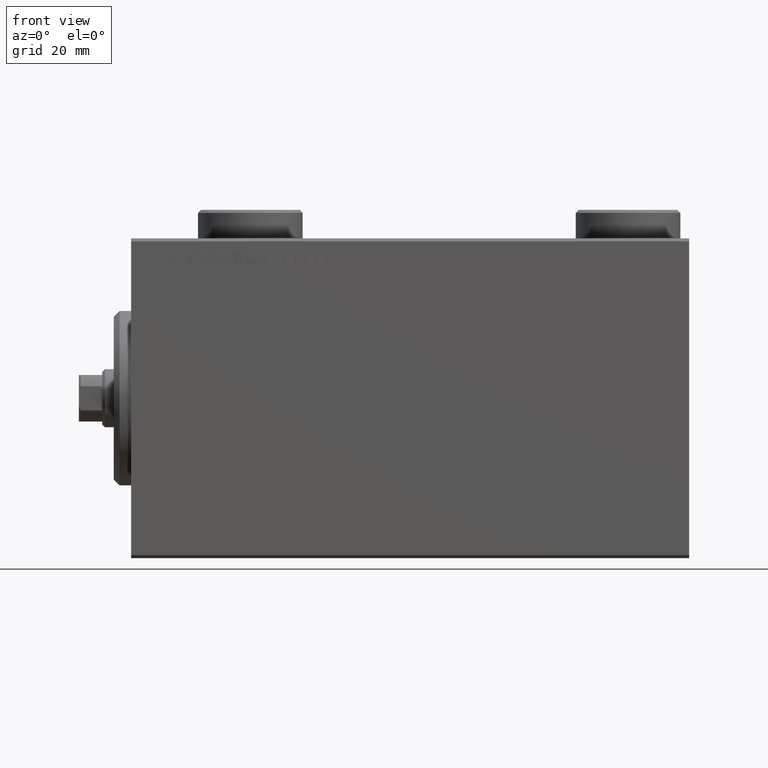
[diagram: clean part render]
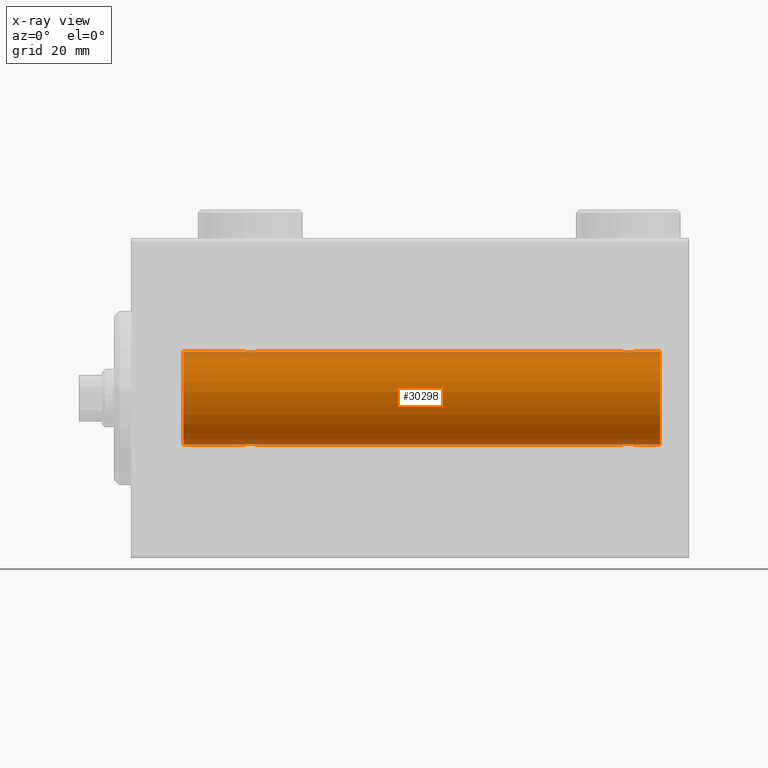
[diagram: x-ray — body ghosted, one internal face saturated and labeled with its STEP entity id]
A machine part, front view, then the same camera in x-ray: the body is ghosted and one INTERNAL B-rep face — a face not visible from any outside direction — is saturated and labeled: STEP entity #30298.
In plain terms, the highlighted cylindrical surface (partial cylindrical patch) has radius 8 mm, axis along (-1, -0, -0).
Its self-contained STEP definition (entity closure, byte-faithful):
#123 = CARTESIAN_POINT ( 'NONE',  ( 19.73732994206309499, -0.9937204387496718638, 7.938174152191987076 ) ) ;
#350 = VERTEX_POINT ( 'NONE', #15003 ) ;
#525 = CARTESIAN_POINT ( 'NONE',  ( 85.17169333885887283, -1.217212176555603431, 7.907113222863028312 ) ) ;
#1001 = DIRECTION ( 'NONE',  ( 0.000000000000000000, 0.000000000000000000, 1.000000000000000000 ) ) ;
#1907 = CARTESIAN_POINT ( 'NONE',  ( 84.28333392022814508, -0.3297258132310611489, -7.994620111903500970 ) ) ;
#1927 = B_SPLINE_CURVE_WITH_KNOTS ( 'NONE', 3,
 ( #6585, #10249, #31679, #41335, #17603, #42014, #123, #35350, #34451, #34677, #28223, #35123, #42241, #10027, #17832, #10698, #21293, #31004, #27553, #24306 ),
 .UNSPECIFIED., .F., .F.,
 ( 4, 2, 2, 2, 2, 2, 2, 2, 2, 4 ),
 ( 0.003914068143704974717, 0.004403205918210087270, 0.004892343692715199824, 0.005136912579967756534, 0.005381481467220313245, 0.005870619241725426665, 0.006359757016230540086, 0.006848894790735652639, 0.007338032565240766060, 0.007827170339745878613 ),
 .UNSPECIFIED. ) ;
#2158 = CARTESIAN_POINT ( 'NONE',  ( 84.25000000000001421, -4.052102368803510290E-23, 7.999999999999998224 ) ) ;
#2283 = CARTESIAN_POINT ( 'NONE',  ( 21.75000000000000355, 9.797173987965608855E-16, -7.999999999999998224 ) ) ;
#2467 = DIRECTION ( 'NONE',  ( -1.000000000000000000, -0.000000000000000000, -0.000000000000000000 ) ) ;
#2487 = DIRECTION ( 'NONE',  ( -1.000000000000000000, 0.000000000000000000, 0.000000000000000000 ) ) ;
#2587 = CARTESIAN_POINT ( 'NONE',  ( 86.12714162834986098, -1.084361243153331378, -7.926301147147065684 ) ) ;
#2685 = DIRECTION ( 'NONE',  ( -1.000000000000000000, -0.000000000000000000, -0.000000000000000000 ) ) ;
#2932 = LINE ( 'NONE', #24118, #35941 ) ;
#2966 = B_SPLINE_CURVE_WITH_KNOTS ( 'NONE', 3,
 ( #30703, #22867, #44954, #37136, #23092, #33691, #30240, #2587, #33916, #44488, #16384, #37830, #40799, #9270, #5590, #44259, #9730, #1907, #12937, #23785 ),
 .UNSPECIFIED., .F., .F.,
 ( 4, 2, 2, 2, 2, 2, 2, 2, 2, 4 ),
 ( 0.003914068143704947829, 0.004403205918210036963, 0.004892343692715126965, 0.005136912579967671533, 0.005381481467220216100, 0.005870619241725345133, 0.006359757016230472432, 0.006848894790735599730, 0.007338032565240728763, 0.007827170339745857797 ),
 .UNSPECIFIED. ) ;
#3046 = CARTESIAN_POINT ( 'NONE',  ( 21.26267005793691212, -0.9937204387496720859, -7.938174152191990629 ) ) ;
#3514 = ORIENTED_EDGE ( 'NONE', *, *, #30362, .T. ) ;
#3529 = CARTESIAN_POINT ( 'NONE',  ( 86.59165033467904493, -0.6303134207467974148, 7.976551562999476985 ) ) ;
#4093 = CIRCLE ( 'NONE', #32771, 7.999999999999998224 ) ;
#4692 = CYLINDRICAL_SURFACE ( 'NONE', #39516, 7.999999999999998224 ) ;
#5590 = CARTESIAN_POINT ( 'NONE',  ( 84.73184514123553868, -0.9994562523959246159, -7.938165420771276182 ) ) ;
#6416 = DIRECTION ( 'NONE',  ( 0.000000000000000000, 0.000000000000000000, 1.000000000000000000 ) ) ;
#6438 = VERTEX_POINT ( 'NONE', #40326 ) ;
#6504 = CARTESIAN_POINT ( 'NONE',  ( 21.75000000000000355, 9.797173987965608855E-16, -7.999999999999998224 ) ) ;
#6534 = VECTOR ( 'NONE', #2685, 1000.000000000000000 ) ;
#6585 = CARTESIAN_POINT ( 'NONE',  ( 19.25000000000000000, -4.052102368803510290E-23, 7.999999999999998224 ) ) ;
#6732 = CARTESIAN_POINT ( 'NONE',  ( 21.75000000000000355, -0.1632520343443068511, -7.999999999999998224 ) ) ;
#6956 = CARTESIAN_POINT ( 'NONE',  ( 19.40834966532100481, -0.6303134207467991912, -7.976551562999473433 ) ) ;
#7188 = DIRECTION ( 'NONE',  ( -1.000000000000000000, -0.000000000000000000, -0.000000000000000000 ) ) ;
#7677 = ORIENTED_EDGE ( 'NONE', *, *, #34051, .F. ) ;
#7921 = FACE_OUTER_BOUND ( 'NONE', #27683, .T. ) ;
#8129 = CARTESIAN_POINT ( 'NONE',  ( 21.75000000000000355, 2.367508772235555199E-16, 7.999999999999998224 ) ) ;
#8147 = DIRECTION ( 'NONE',  ( -1.000000000000000000, -0.000000000000000000, -0.000000000000000000 ) ) ;
#8257 = CARTESIAN_POINT ( 'NONE',  ( 84.25000000000001421, -1.276489185009471567E-14, -7.999999999999998224 ) ) ;
#8598 = DIRECTION ( 'NONE',  ( -1.000000000000000000, -0.000000000000000000, -0.000000000000000000 ) ) ;
#9270 = CARTESIAN_POINT ( 'NONE',  ( 84.87056207267774255, -1.092287957405127408, -7.925333492638528377 ) ) ;
#9296 = CARTESIAN_POINT ( 'NONE',  ( 84.50041313324086900, -0.7680324342712208097, 7.963892330120033947 ) ) ;
#9680 = CARTESIAN_POINT ( 'NONE',  ( 91.00000000000000000, 9.797174393178823685E-16, -7.999999999999998224 ) ) ;
#9730 = CARTESIAN_POINT ( 'NONE',  ( 84.40834966532098349, -0.6303134207468096273, -7.976551562999471656 ) ) ;
#10027 = CARTESIAN_POINT ( 'NONE',  ( 21.12943792732229298, -1.092287957405117194, 7.925333492638530153 ) ) ;
#10205 = CARTESIAN_POINT ( 'NONE',  ( 86.49841755665750043, -0.7695044314719109435, 7.963745725343518878 ) ) ;
#10249 = CARTESIAN_POINT ( 'NONE',  ( 19.25000000000000355, -0.1632520343443079336, 8.000000000000000000 ) ) ;
#10303 = CARTESIAN_POINT ( 'NONE',  ( 9.000000000000007105, 0.000000000000000000, 0.000000000000000000 ) ) ;
#10356 = LINE ( 'NONE', #9680, #11144 ) ;
#10433 = CARTESIAN_POINT ( 'NONE',  ( 86.75000000000002842, 3.826567769925454797E-16, 7.999999999999998224 ) ) ;
#10698 = CARTESIAN_POINT ( 'NONE',  ( 21.49841755665748622, -0.7695044314719063916, 7.963745725343518878 ) ) ;
#10980 = DIRECTION ( 'NONE',  ( -1.000000000000000000, -0.000000000000000000, -0.000000000000000000 ) ) ;
#11104 = CARTESIAN_POINT ( 'NONE',  ( 86.75000000000000000, -0.1654128203352888959, 7.999999999999998224 ) ) ;
#11144 = VECTOR ( 'NONE', #17256, 1000.000000000000000 ) ;
#11261 = EDGE_CURVE ( 'NONE', #43875, #11678, #4093, .T. ) ;
#11678 = VERTEX_POINT ( 'NONE', #30193 ) ;
#12734 = CARTESIAN_POINT ( 'NONE',  ( 84.25000000000001421, -0.1632520343443091548, 7.999999999999998224 ) ) ;
#12937 = CARTESIAN_POINT ( 'NONE',  ( 84.25000000000002842, -0.1654128203353027737, -7.999999999999996447 ) ) ;
#13135 = EDGE_CURVE ( 'NONE', #6438, #350, #23954, .T. ) ;
#13154 = CARTESIAN_POINT ( 'NONE',  ( 91.00000000000000000, 0.000000000000000000, 7.999999999999998224 ) ) ;
#13200 = VERTEX_POINT ( 'NONE', #20802 ) ;
#13622 = CARTESIAN_POINT ( 'NONE',  ( 21.05544625654724200, -1.122809931695431640, -7.920878051565290789 ) ) ;
#14587 = VECTOR ( 'NONE', #8598, 1000.000000000000000 ) ;
#14616 = CIRCLE ( 'NONE', #41853, 7.999999999999998224 ) ;
#15003 = CARTESIAN_POINT ( 'NONE',  ( 86.75000000000002842, 3.826567769925454797E-16, 7.999999999999998224 ) ) ;
#15487 = CARTESIAN_POINT ( 'NONE',  ( 91.00000000000000000, 0.000000000000000000, 0.000000000000000000 ) ) ;
#15500 = B_SPLINE_CURVE_WITH_KNOTS ( 'NONE', 3,
 ( #6504, #6732, #20768, #20536, #34600, #34827, #3046, #45174, #13622, #27699, #31373, #41709, #27921, #41933, #24460, #38498, #6956, #35048, #32499, #39387 ),
 .UNSPECIFIED., .F., .F.,
 ( 4, 2, 2, 2, 2, 2, 2, 2, 2, 4 ),
 ( 0.003914068143704951298, 0.004403205918210062117, 0.004892343692715172936, 0.005136912579967725309, 0.005381481467220276815, 0.005870619241725390236, 0.006359757016230503657, 0.006848894790735617077, 0.007338032565240730498, 0.007827170339745843919 ),
 .UNSPECIFIED. ) ;
#15708 = EDGE_CURVE ( 'NONE', #25920, #15882, #15500, .T. ) ;
#15870 = CARTESIAN_POINT ( 'NONE',  ( 19.25000000000000711, -3.107364149877583097E-15, -7.999999999999998224 ) ) ;
#15882 = VERTEX_POINT ( 'NONE', #15870 ) ;
#16236 = ORIENTED_EDGE ( 'NONE', *, *, #13135, .T. ) ;
#16384 = CARTESIAN_POINT ( 'NONE',  ( 85.66599605016011765, -1.249894643705230068, -7.901756981264361102 ) ) ;
#17185 = VERTEX_POINT ( 'NONE', #37001 ) ;
#17256 = DIRECTION ( 'NONE',  ( -1.000000000000000000, -0.000000000000000000, -0.000000000000000000 ) ) ;
#17427 = LINE ( 'NONE', #42517, #25738 ) ;
#17603 = CARTESIAN_POINT ( 'NONE',  ( 19.50041313324087611, -0.7680324342712182561, 7.963892330120039276 ) ) ;
#17785 = CARTESIAN_POINT ( 'NONE',  ( 84.87285837165013902, -1.084361243153322940, 7.926301147147063908 ) ) ;
#17832 = CARTESIAN_POINT ( 'NONE',  ( 21.26815485876451461, -0.9994562523959116263, 7.938165420771274405 ) ) ;
#18958 = VERTEX_POINT ( 'NONE', #8257 ) ;
#19140 = ORIENTED_EDGE ( 'NONE', *, *, #33506, .F. ) ;
#19402 = DIRECTION ( 'NONE',  ( 0.000000000000000000, 0.000000000000000000, 1.000000000000000000 ) ) ;
#20279 = VERTEX_POINT ( 'NONE', #8129 ) ;
#20301 = ORIENTED_EDGE ( 'NONE', *, *, #34778, .F. ) ;
#20536 = CARTESIAN_POINT ( 'NONE',  ( 21.59250917855271013, -0.6288424646912625926, -7.976670562295708145 ) ) ;
#20768 = CARTESIAN_POINT ( 'NONE',  ( 21.71715712019488009, -0.3279446529214856687, -7.994696267489723951 ) ) ;
#20802 = CARTESIAN_POINT ( 'NONE',  ( 19.25000000000000000, -4.052102368803510290E-23, 7.999999999999998224 ) ) ;
#21023 = CARTESIAN_POINT ( 'NONE',  ( 86.26815485876451817, -0.9994562523959157341, 7.938165420771272629 ) ) ;
#21293 = CARTESIAN_POINT ( 'NONE',  ( 21.59165033467900940, -0.6303134207467964156, 7.976551562999473433 ) ) ;
#21475 = CARTESIAN_POINT ( 'NONE',  ( 85.66440551148905058, -1.250104850332079520, 7.901723728054485640 ) ) ;
#21749 = ORIENTED_EDGE ( 'NONE', *, *, #39522, .T. ) ;
#22867 = CARTESIAN_POINT ( 'NONE',  ( 86.75000000000001421, -0.1632520343443081834, -8.000000000000000000 ) ) ;
#23092 = CARTESIAN_POINT ( 'NONE',  ( 86.49958686675913100, -0.7680324342712141483, -7.963892330120035723 ) ) ;
#23394 = EDGE_CURVE ( 'NONE', #17185, #39199, #2932, .T. ) ;
#23785 = CARTESIAN_POINT ( 'NONE',  ( 84.25000000000001421, -1.276489185009471567E-14, -7.999999999999998224 ) ) ;
#23954 = B_SPLINE_CURVE_WITH_KNOTS ( 'NONE', 3,
 ( #2158, #12734, #40826, #26815, #9296, #42194, #28406, #17785, #31191, #525, #31638, #21475, #42421, #38302, #21023, #10205, #3529, #28181, #11104, #10433 ),
 .UNSPECIFIED., .F., .F.,
 ( 4, 2, 2, 2, 2, 2, 2, 2, 2, 4 ),
 ( 0.003914068143704953900, 0.004403205918210113291, 0.004892343692715272682, 0.005136912579967838066, 0.005381481467220403450, 0.005870619241725495187, 0.006359757016230586923, 0.006848894790735679527, 0.007338032565240772132, 0.007827170339745864736 ),
 .UNSPECIFIED. ) ;
#24118 = CARTESIAN_POINT ( 'NONE',  ( 91.00000000000000000, 9.797174393178823685E-16, -7.999999999999998224 ) ) ;
#24306 = CARTESIAN_POINT ( 'NONE',  ( 21.75000000000000355, 2.367508772235555199E-16, 7.999999999999998224 ) ) ;
#24460 = CARTESIAN_POINT ( 'NONE',  ( 19.73184514123549249, -0.9994562523959139577, -7.938165420771276182 ) ) ;
#24689 = LINE ( 'NONE', #38725, #40486 ) ;
#25738 = VECTOR ( 'NONE', #10980, 1000.000000000000000 ) ;
#25920 = VERTEX_POINT ( 'NONE', #2283 ) ;
#26815 = CARTESIAN_POINT ( 'NONE',  ( 84.40749082144731119, -0.6288424646912691429, 7.976670562295704592 ) ) ;
#27553 = CARTESIAN_POINT ( 'NONE',  ( 21.75000000000000711, -0.1654128203352893955, 8.000000000000001776 ) ) ;
#27683 = EDGE_LOOP ( 'NONE', ( #20301, #41180, #3514, #21749, #28641, #35245, #39474, #7677, #44024, #29522, #16236, #19140 ) ) ;
#27699 = CARTESIAN_POINT ( 'NONE',  ( 20.82830666114114848, -1.217212176555599434, -7.907113222863026536 ) ) ;
#27921 = CARTESIAN_POINT ( 'NONE',  ( 20.17298283628253230, -1.217515856520239970, -7.907063872927298398 ) ) ;
#28181 = CARTESIAN_POINT ( 'NONE',  ( 86.71666607977188335, -0.3297258132310484924, 7.994620111903502746 ) ) ;
#28223 = CARTESIAN_POINT ( 'NONE',  ( 20.33400394983990722, -1.249894643705219410, 7.901756981264364654 ) ) ;
#28406 = CARTESIAN_POINT ( 'NONE',  ( 84.73732994206314117, -0.9937204387496767488, 7.938174152191988853 ) ) ;
#28641 = ORIENTED_EDGE ( 'NONE', *, *, #15708, .T. ) ;
#29522 = ORIENTED_EDGE ( 'NONE', *, *, #35536, .F. ) ;
#30113 = CARTESIAN_POINT ( 'NONE',  ( 91.00000000000000000, 0.000000000000000000, 7.999999999999998224 ) ) ;
#30193 = CARTESIAN_POINT ( 'NONE',  ( 9.000000000000007105, 0.000000000000000000, 7.999999999999998224 ) ) ;
#30240 = CARTESIAN_POINT ( 'NONE',  ( 86.26267005793690146, -0.9937204387496841873, -7.938174152191988853 ) ) ;
#30298 = ADVANCED_FACE ( 'NONE', ( #7921 ), #4692, .F. ) ;
#30362 = EDGE_CURVE ( 'NONE', #39199, #18958, #2966, .T. ) ;
#30703 = CARTESIAN_POINT ( 'NONE',  ( 86.75000000000002842, 9.797173987969553159E-16, -7.999999999999998224 ) ) ;
#31004 = CARTESIAN_POINT ( 'NONE',  ( 21.71666607977187269, -0.3297258132310499357, 7.994620111903506299 ) ) ;
#31191 = CARTESIAN_POINT ( 'NONE',  ( 84.94455374345277221, -1.122809931695436525, 7.920878051565286349 ) ) ;
#31373 = CARTESIAN_POINT ( 'NONE',  ( 20.66599605016009988, -1.249894643705219854, -7.901756981264366431 ) ) ;
#31638 = CARTESIAN_POINT ( 'NONE',  ( 85.33400394983991077, -1.249894643705222297, 7.901756981264366431 ) ) ;
#31679 = CARTESIAN_POINT ( 'NONE',  ( 19.28284287980512346, -0.3279446529214880002, 7.994696267489722175 ) ) ;
#32499 = CARTESIAN_POINT ( 'NONE',  ( 19.25000000000000711, -0.1654128203352910609, -7.999999999999998224 ) ) ;
#32568 = CARTESIAN_POINT ( 'NONE',  ( 91.00000000000000000, 0.000000000000000000, 0.000000000000000000 ) ) ;
#32771 = AXIS2_PLACEMENT_3D ( 'NONE', #10303, #2487, #6416 ) ;
#32955 = VERTEX_POINT ( 'NONE', #13154 ) ;
#33028 = DIRECTION ( 'NONE',  ( -1.000000000000000000, 0.000000000000000000, 0.000000000000000000 ) ) ;
#33469 = LINE ( 'NONE', #43583, #14587 ) ;
#33506 = EDGE_CURVE ( 'NONE', #32955, #350, #40897, .T. ) ;
#33691 = CARTESIAN_POINT ( 'NONE',  ( 86.32687899779145368, -0.9409612394163503479, -7.944680966683013601 ) ) ;
#33916 = CARTESIAN_POINT ( 'NONE',  ( 86.05544625654727042, -1.122809931695437413, -7.920878051565288125 ) ) ;
#34051 = EDGE_CURVE ( 'NONE', #13200, #11678, #33469, .T. ) ;
#34451 = CARTESIAN_POINT ( 'NONE',  ( 19.94455374345276155, -1.122809931695431640, 7.920878051565288125 ) ) ;
#34600 = CARTESIAN_POINT ( 'NONE',  ( 21.49958686675913810, -0.7680324342712174790, -7.963892330120039276 ) ) ;
#34677 = CARTESIAN_POINT ( 'NONE',  ( 20.17169333885885862, -1.217212176555599878, 7.907113222863031865 ) ) ;
#34778 = EDGE_CURVE ( 'NONE', #17185, #32955, #14616, .T. ) ;
#34827 = CARTESIAN_POINT ( 'NONE',  ( 21.32687899779140750, -0.9409612394163509030, -7.944680966683015377 ) ) ;
#35048 = CARTESIAN_POINT ( 'NONE',  ( 19.28333392022813797, -0.3297258132310537104, -7.994620111903500970 ) ) ;
#35123 = CARTESIAN_POINT ( 'NONE',  ( 20.66440551148902571, -1.250104850332075523, 7.901723728054487417 ) ) ;
#35245 = ORIENTED_EDGE ( 'NONE', *, *, #40480, .T. ) ;
#35350 = CARTESIAN_POINT ( 'NONE',  ( 19.87285837165014613, -1.084361243153319387, 7.926301147147063908 ) ) ;
#35536 = EDGE_CURVE ( 'NONE', #6438, #20279, #17427, .T. ) ;
#35924 = EDGE_CURVE ( 'NONE', #13200, #20279, #1927, .T. ) ;
#35941 = VECTOR ( 'NONE', #2467, 1000.000000000000000 ) ;
#37001 = CARTESIAN_POINT ( 'NONE',  ( 91.00000000000000000, 9.797174393178823685E-16, -7.999999999999998224 ) ) ;
#37136 = CARTESIAN_POINT ( 'NONE',  ( 86.59250917855273144, -0.6288424646912651461, -7.976670562295706368 ) ) ;
#37830 = CARTESIAN_POINT ( 'NONE',  ( 85.33559448851102047, -1.250104850332087736, -7.901723728054487417 ) ) ;
#38302 = CARTESIAN_POINT ( 'NONE',  ( 86.12943792732230008, -1.092287957405119414, 7.925333492638526600 ) ) ;
#38498 = CARTESIAN_POINT ( 'NONE',  ( 19.50158244334252089, -0.7695044314719098333, -7.963745725343515325 ) ) ;
#38725 = CARTESIAN_POINT ( 'NONE',  ( 91.00000000000000000, 9.797174393178823685E-16, -7.999999999999998224 ) ) ;
#39199 = VERTEX_POINT ( 'NONE', #44255 ) ;
#39387 = CARTESIAN_POINT ( 'NONE',  ( 19.25000000000000711, -3.107364149877583097E-15, -7.999999999999998224 ) ) ;
#39474 = ORIENTED_EDGE ( 'NONE', *, *, #11261, .T. ) ;
#39516 = AXIS2_PLACEMENT_3D ( 'NONE', #32568, #8147, #1001 ) ;
#39522 = EDGE_CURVE ( 'NONE', #18958, #25920, #24689, .T. ) ;
#40326 = CARTESIAN_POINT ( 'NONE',  ( 84.25000000000001421, -4.052102368803510290E-23, 7.999999999999998224 ) ) ;
#40480 = EDGE_CURVE ( 'NONE', #15882, #43875, #10356, .T. ) ;
#40486 = VECTOR ( 'NONE', #7188, 1000.000000000000000 ) ;
#40799 = CARTESIAN_POINT ( 'NONE',  ( 85.17298283628258559, -1.217515856520248407, -7.907063872927295733 ) ) ;
#40826 = CARTESIAN_POINT ( 'NONE',  ( 84.28284287980513056, -0.3279446529214929407, 7.994696267489723951 ) ) ;
#40897 = LINE ( 'NONE', #30113, #6534 ) ;
#41180 = ORIENTED_EDGE ( 'NONE', *, *, #23394, .T. ) ;
#41335 = CARTESIAN_POINT ( 'NONE',  ( 19.40749082144729343, -0.6288424646912651461, 7.976670562295706368 ) ) ;
#41709 = CARTESIAN_POINT ( 'NONE',  ( 20.33559448851098850, -1.250104850332076634, -7.901723728054487417 ) ) ;
#41853 = AXIS2_PLACEMENT_3D ( 'NONE', #15487, #33028, #19402 ) ;
#41933 = CARTESIAN_POINT ( 'NONE',  ( 19.87056207267771413, -1.092287957405118970, -7.925333492638526600 ) ) ;
#42014 = CARTESIAN_POINT ( 'NONE',  ( 19.67312100220859605, -0.9409612394163517912, 7.944680966683013601 ) ) ;
#42194 = CARTESIAN_POINT ( 'NONE',  ( 84.67312100220863158, -0.9409612394163545668, 7.944680966683010936 ) ) ;
#42241 = CARTESIAN_POINT ( 'NONE',  ( 20.82701716371747480, -1.217515856520238637, 7.907063872927298398 ) ) ;
#42418 = CARTESIAN_POINT ( 'NONE',  ( 9.000000000000007105, 9.797174393178823685E-16, -7.999999999999998224 ) ) ;
#42421 = CARTESIAN_POINT ( 'NONE',  ( 85.82701716371745704, -1.217515856520240192, 7.907063872927293957 ) ) ;
#42517 = CARTESIAN_POINT ( 'NONE',  ( 91.00000000000000000, 0.000000000000000000, 7.999999999999998224 ) ) ;
#43583 = CARTESIAN_POINT ( 'NONE',  ( 91.00000000000000000, 0.000000000000000000, 7.999999999999998224 ) ) ;
#43875 = VERTEX_POINT ( 'NONE', #42418 ) ;
#44024 = ORIENTED_EDGE ( 'NONE', *, *, #35924, .T. ) ;
#44255 = CARTESIAN_POINT ( 'NONE',  ( 86.75000000000002842, 9.797173987969553159E-16, -7.999999999999998224 ) ) ;
#44259 = CARTESIAN_POINT ( 'NONE',  ( 84.50158244334252799, -0.7695044314719188261, -7.963745725343513548 ) ) ;
#44488 = CARTESIAN_POINT ( 'NONE',  ( 85.82830666114118401, -1.217212176555608094, -7.907113222863028312 ) ) ;
#44954 = CARTESIAN_POINT ( 'NONE',  ( 86.71715712019492628, -0.3279446529214858908, -7.994696267489722175 ) ) ;
#45174 = CARTESIAN_POINT ( 'NONE',  ( 21.12714162834985387, -1.084361243153318721, -7.926301147147063908 ) ) ;